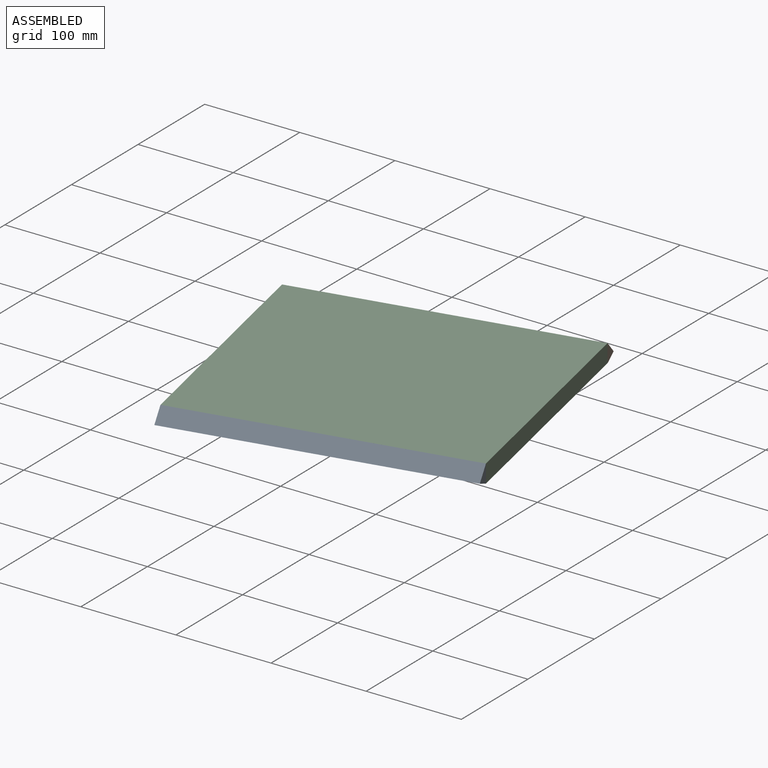
[diagram: assembled view]
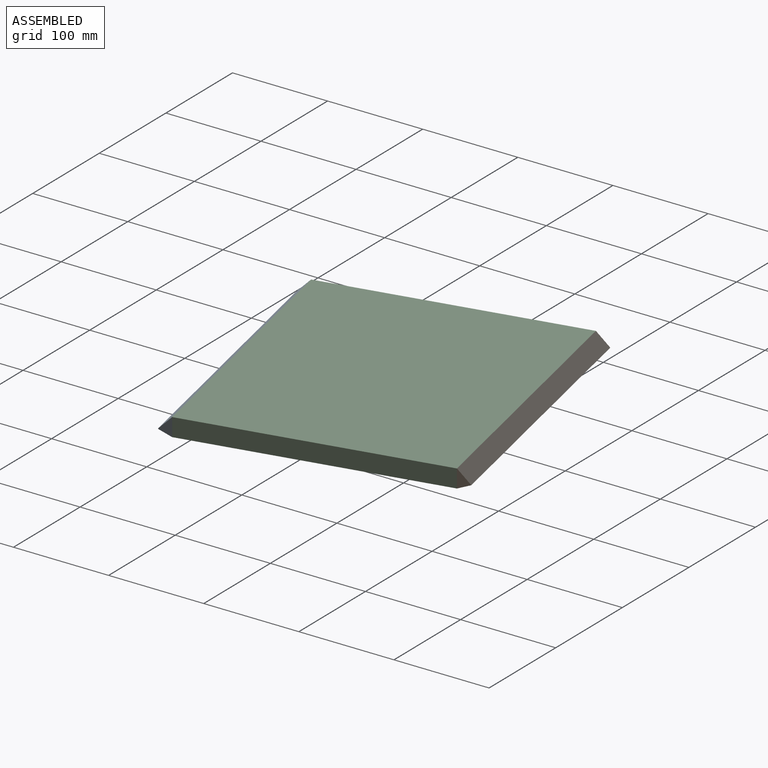
[diagram: assembled view, second angle]
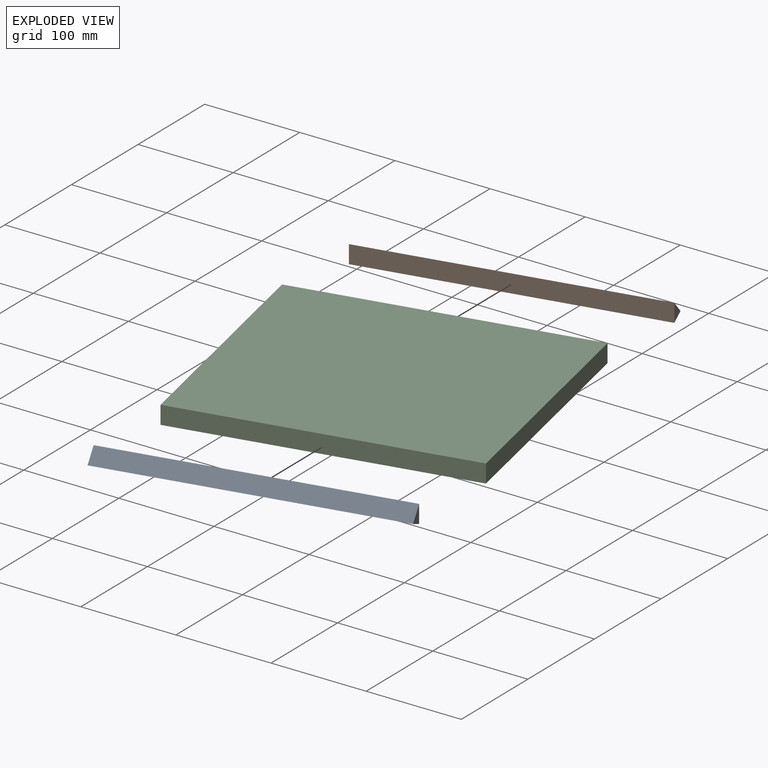
[diagram: exploded view]
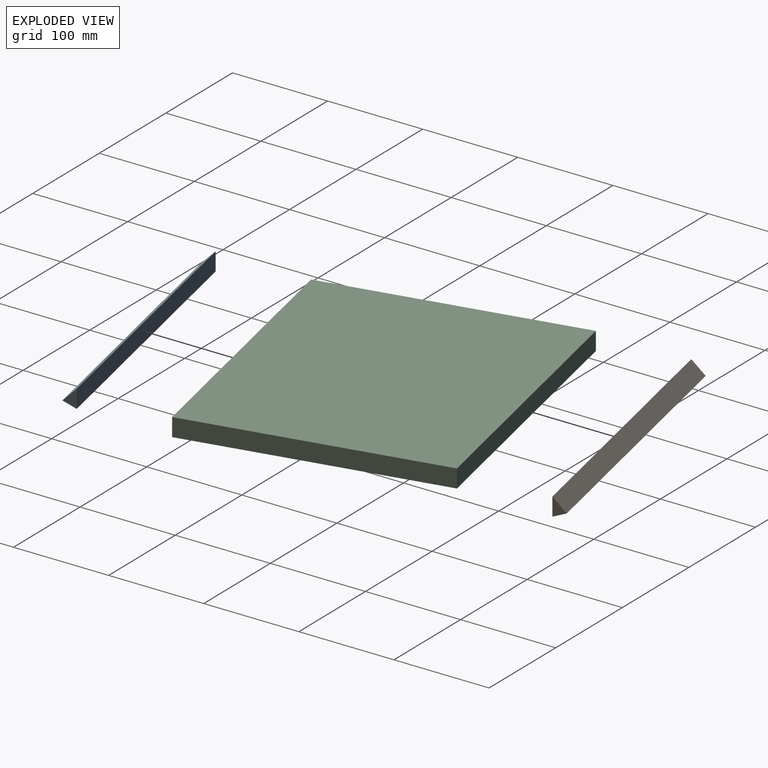
[diagram: exploded view, second angle]
ASSEMBLY  parts=3 mates=2
PART A: 5 faces, bbox 304.8x13.5x19.1 mm
  f0: plane 304.8x19.05mm, normal (0,1,0), area 5806.4mm2, adj f1,f2,f3,f4
  f1: plane 304.8x13.47mm, normal (0,-0.71,0.71), area 5806.4mm2, adj f0,f2,f3,f4
  f2: plane 304.8x13.47mm, normal (0,-0.38,-0.92), area 4444.1mm2, adj f0,f1,f3,f4
  f3: plane 19.05x13.47mm, normal (1,0,0), area 128.3mm2, adj f0,f1,f2
  f4: plane 19.05x13.47mm, normal (-1,0,0), area 128.3mm2, adj f0,f1,f2
PART B: same geometry as A
PART C: 6 faces, bbox 266.7x304.8x19.1 mm
  f0: plane 266.7x19.05mm, normal (0,-1,0), area 5080.6mm2, adj f1,f3,f4,f5
  f1: plane 304.8x19.05mm, normal (1,0,0), area 5806.4mm2, adj f0,f2,f4,f5
  f2: plane 266.7x19.05mm, normal (0,1,0), area 5080.6mm2, adj f1,f3,f4,f5
  f3: plane 304.8x19.05mm, normal (-1,0,0), area 5806.4mm2, adj f0,f2,f4,f5
  f4: plane 304.8x266.7mm, normal (0,0,1), area 81290.2mm2, adj f0,f1,f2,f3
  f5: plane 304.8x266.7mm, normal (0,0,-1), area 81290.2mm2, adj f0,f1,f2,f3
PLACE A rot(axis=(0,0,1),11.9deg) t=(143.86,-27.49,0)mm
PLACE B rot(axis=(0,0,-1),168.1deg) t=(405.19,210.76,0)mm
PLACE C rot(axis=(0,0,-1),78.1deg) t=(152.85,-70.24,-35.55)mm
MATE fastened A.f0 <-> C.f1  axis (-0.21,0.98,0) through (301.99,-38.85,-26.02)mm
MATE fastened C.f3 <-> B.f0  axis (-0.21,0.98,0) through (247.06,222.13,-26.02)mm
